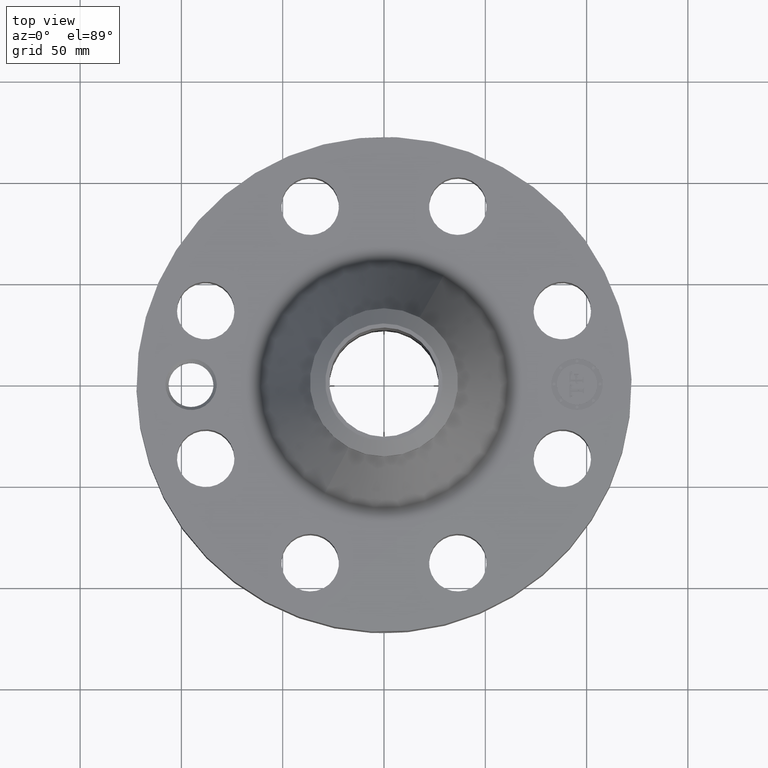
[diagram: clean part render]
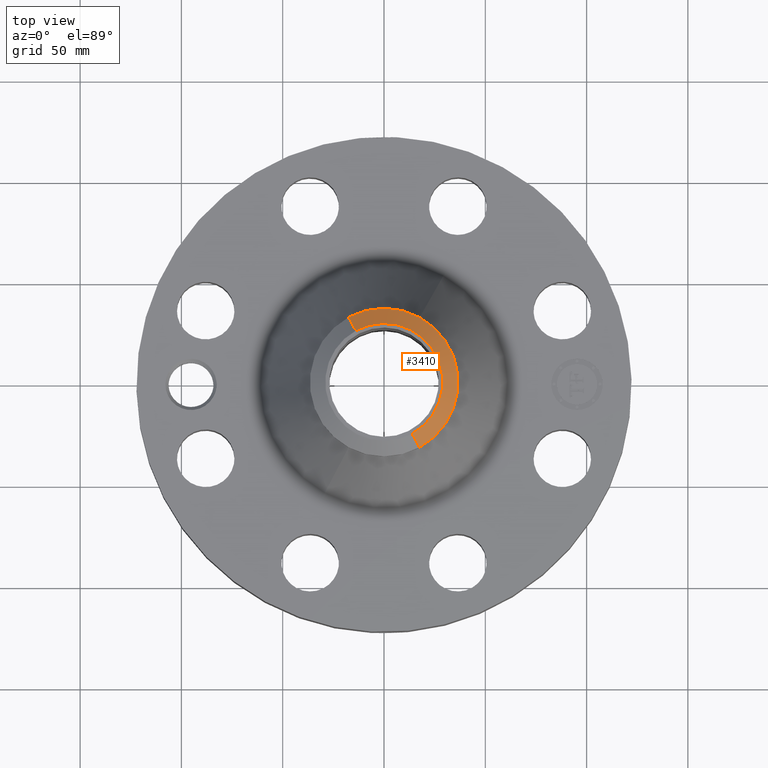
[diagram: same view with one face highlighted and labeled with its STEP entity id]
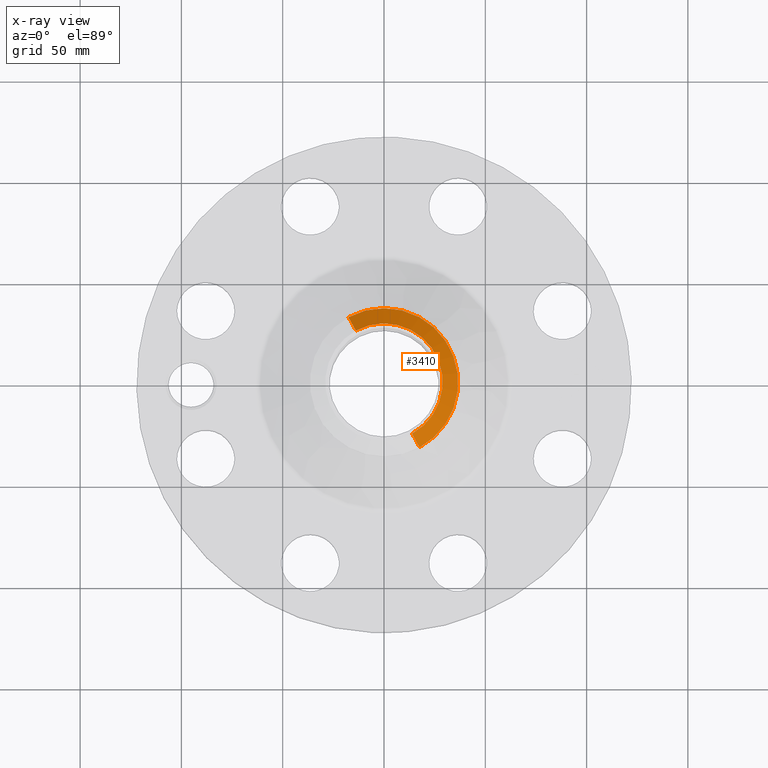
[diagram: x-ray of the same camera — body ghosted, the highlighted face saturated]
A machine part, top view. The second image highlights one B-rep face of the part: STEP entity #3410.
The next image is the same camera in x-ray: the body ghosted, the highlighted face saturated — about 0% of this face is hidden behind the body in this view.
In plain terms, the highlighted conical surface has half-angle 52.5 deg.
Its self-contained STEP definition (entity closure, byte-faithful):
#2477=AXIS2_PLACEMENT_3D('Circle Axis2P3D',#2475,#2476,$) ;
#3355=AXIS2_PLACEMENT_3D('Cone Axis2P3D',#3352,#3353,#3354) ;
#3393=AXIS2_PLACEMENT_3D('Circle Axis2P3D',#3391,#3392,$) ;
#3400=AXIS2_PLACEMENT_3D('Circle Axis2P3D',#3398,#3399,$) ;
#2475=CARTESIAN_POINT('Axis2P3D Location',(0.,0.,4.37000000002)) ;
#2479=CARTESIAN_POINT('Vertex',(0.547139677179,-1.00153246114,4.37000000002)) ;
#2481=CARTESIAN_POINT('Vertex',(-0.547139677179,1.00153246114,4.37000000002)) ;
#3352=CARTESIAN_POINT('Axis2P3D Location',(0.,0.,4.37000000002)) ;
#3357=CARTESIAN_POINT('Line Origine',(0.618756226386,-1.13262567513,4.25537675497)) ;
#3361=CARTESIAN_POINT('Vertex',(0.690372775593,-1.26371888913,4.14075350993)) ;
#3364=CARTESIAN_POINT('Line Origine',(-0.618756226386,1.13262567513,4.25537675497)) ;
#3368=CARTESIAN_POINT('Vertex',(-0.690372775593,1.26371888913,4.14075350993)) ;
#3391=CARTESIAN_POINT('Axis2P3D Location',(0.,0.,4.14075350993)) ;
#3395=CARTESIAN_POINT('Vertex',(0.690372775593,1.26371888913,4.14075350993)) ;
#3398=CARTESIAN_POINT('Axis2P3D Location',(0.,0.,4.14075350993)) ;
#2476=DIRECTION('Axis2P3D Direction',(0.,0.,-0.0393700787402)) ;
#3353=DIRECTION('Axis2P3D Direction',(-0.,-0.,-0.0393700787402)) ;
#3354=DIRECTION('Axis2P3D XDirection',(-0.0188750212049,0.0345504945626,0.)) ;
#3358=DIRECTION('Vector Direction',(0.014974561121,-0.02741075027,-0.023966985394)) ;
#3365=DIRECTION('Vector Direction',(-0.014974561121,0.02741075027,-0.023966985394)) ;
#3392=DIRECTION('Axis2P3D Direction',(0.,0.,-0.0393700787402)) ;
#3399=DIRECTION('Axis2P3D Direction',(0.,0.,-0.0393700787402)) ;
#3359=VECTOR('Line Direction',#3358,0.0393700787402) ;
#3366=VECTOR('Line Direction',#3365,0.0393700787402) ;
#3404=ORIENTED_EDGE('',*,*,#3370,.F.) ;
#3405=ORIENTED_EDGE('',*,*,#2483,.F.) ;
#3406=ORIENTED_EDGE('',*,*,#3363,.T.) ;
#3407=ORIENTED_EDGE('',*,*,#3397,.T.) ;
#3408=ORIENTED_EDGE('',*,*,#3402,.F.) ;
#3410=ADVANCED_FACE('PartBody',(#3409),#3356,.T.) ;
#2478=CIRCLE('generated circle',#2477,1.14124015748) ;
#3394=CIRCLE('generated circle',#3393,1.44000000001) ;
#3401=CIRCLE('generated circle',#3400,1.44000000001) ;
#3356=CONICAL_SURFACE('Cone',#3355,1.14124015748,0.916297857297) ;
#2483=EDGE_CURVE('',#2480,#2482,#2478,.F.) ;
#3363=EDGE_CURVE('',#2480,#3362,#3360,.T.) ;
#3370=EDGE_CURVE('',#2482,#3369,#3367,.T.) ;
#3397=EDGE_CURVE('',#3362,#3396,#3394,.F.) ;
#3402=EDGE_CURVE('',#3369,#3396,#3401,.T.) ;
#3403=EDGE_LOOP('',(#3404,#3405,#3406,#3407,#3408)) ;
#3409=FACE_OUTER_BOUND('',#3403,.T.) ;
#3360=LINE('Line',#3357,#3359) ;
#3367=LINE('Line',#3364,#3366) ;
#2480=VERTEX_POINT('',#2479) ;
#2482=VERTEX_POINT('',#2481) ;
#3362=VERTEX_POINT('',#3361) ;
#3369=VERTEX_POINT('',#3368) ;
#3396=VERTEX_POINT('',#3395) ;